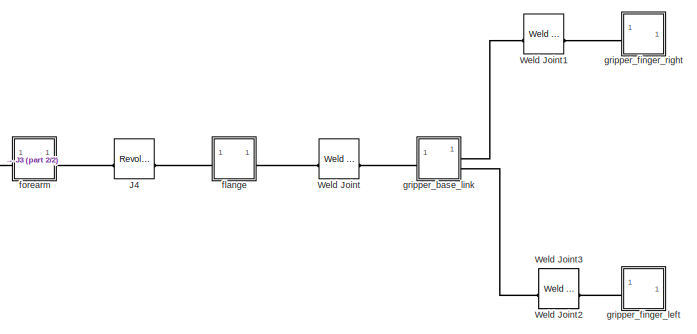
[diagram: root canvas - part 1/2, right side, full height]
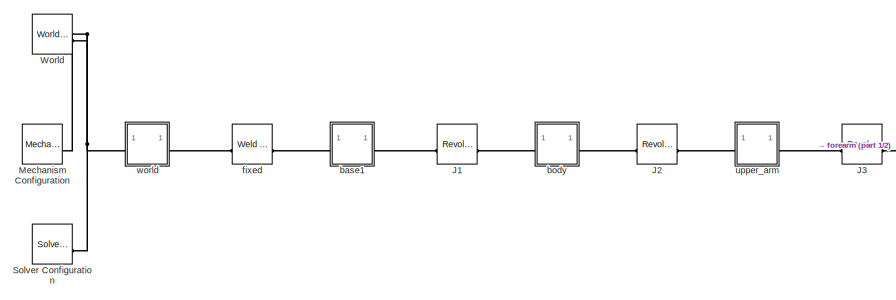
[diagram: root canvas - part 2/2, left side, full height]
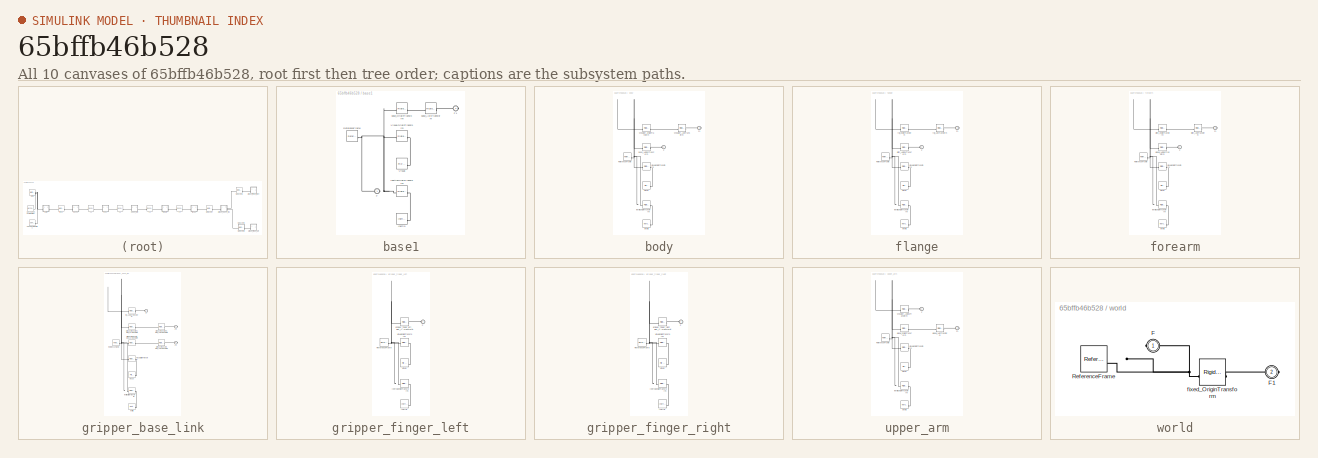
[diagram: thumbnail index - all 10 canvases of the model, root first then tree order]
MODEL slx_65bffb46b528
KIND model
CONFIG AbsTol = auto
CONFIG EnableMultiTasking = off
CONFIG FixedStep = auto
CONFIG MaxStep = auto
CONFIG MinStep = auto
CONFIG RelTol = 1e-3
CONFIG SampleTimeConstraint = Unconstrained
CONFIG SolverName = VariableStepAuto
CONFIG StartTime = 0.0
CONFIG StopTime = 1
BLOCK [Reference] J1  REF=sm_lib/Joints/Revolute Joint
  SourceBlock = sm_lib/Joints/Revolute Joint
  SourceType = Revolute Joint
BLOCK [Reference] J2  REF=sm_lib/Joints/Revolute Joint
  SourceBlock = sm_lib/Joints/Revolute Joint
  SourceType = Revolute Joint
BLOCK [Reference] J3  REF=sm_lib/Joints/Revolute Joint
  SourceBlock = sm_lib/Joints/Revolute Joint
  SourceType = Revolute Joint
BLOCK [Reference] J4  REF=sm_lib/Joints/Revolute Joint
  SourceBlock = sm_lib/Joints/Revolute Joint
  SourceType = Revolute Joint
BLOCK [Reference] Mechanism Configuration  REF=sm_lib/Utilities/Mechanism
Configuration
  SourceBlock = sm_lib/Utilities/Mechanism\nConfiguration
  SourceType = Mechanism\nConfiguration
BLOCK [Reference] Solver Configuration  REF=nesl_utility/Solver
Configuration
  SourceBlock = nesl_utility/Solver\nConfiguration
  SourceType = Solver\nConfiguration
BLOCK [Reference] Weld Joint  REF=sm_lib/Joints/Weld Joint
  SourceBlock = sm_lib/Joints/Weld Joint
  SourceType = Weld Joint
BLOCK [Reference] Weld Joint1  REF=sm_lib/Joints/Weld Joint
  SourceBlock = sm_lib/Joints/Weld Joint
  SourceType = Weld Joint
BLOCK [Reference] Weld Joint2  REF=sm_lib/Joints/Weld Joint
  Commented = on
  SourceBlock = sm_lib/Joints/Weld Joint
  SourceType = Weld Joint
BLOCK [Reference] Weld Joint3  REF=sm_lib/Joints/Weld Joint
  SourceBlock = sm_lib/Joints/Weld Joint
  SourceType = Weld Joint
BLOCK [Reference] World  REF=sm_lib/Frames and
Transforms/World Frame
  SourceBlock = sm_lib/Frames and\nTransforms/World Frame
  SourceType = World Frame
BLOCK [SubSystem] base1
BLOCK [PMIOPort] base1/F
  Side = Left
BLOCK [PMIOPort] base1/F1
  Port = 2
  Side = Right
BLOCK [Reference] base1/Inertia  REF=sm_lib/Body Elements/Inertia
  SourceBlock = sm_lib/Body Elements/Inertia
  SourceType = Inertia
BLOCK [Reference] base1/InertiaOriginTransform  REF=sm_lib/Frames and
Transforms/Rigid
Transform
  SourceBlock = sm_lib/Frames and\nTransforms/Rigid\nTransform
  SourceType = Rigid\nTransform
BLOCK [Reference] base1/ReferenceFrame  REF=sm_lib/Frames and
Transforms/Reference
Frame
  SourceBlock = sm_lib/Frames and\nTransforms/Reference\nFrame
  SourceType = Reference\nFrame
BLOCK [Reference] base1/Visual  REF=sm_lib/Body Elements/File Solid
  SourceBlock = sm_lib/Body Elements/File Solid
  SourceType = File Solid
BLOCK [Reference] base1/VisualOriginTransform  REF=sm_lib/Frames and
Transforms/Rigid
Transform
  SourceBlock = sm_lib/Frames and\nTransforms/Rigid\nTransform
  SourceType = Rigid\nTransform
BLOCK [Reference] base1/base_AxisTransform  REF=sm_lib/Frames and
Transforms/Rigid
Transform
  SourceBlock = sm_lib/Frames and\nTransforms/Rigid\nTransform
  SourceType = Rigid\nTransform
BLOCK [Reference] base1/base_OriginTransform  REF=sm_lib/Frames and
Transforms/Rigid
Transform
  SourceBlock = sm_lib/Frames and\nTransforms/Rigid\nTransform
  SourceType = Rigid\nTransform
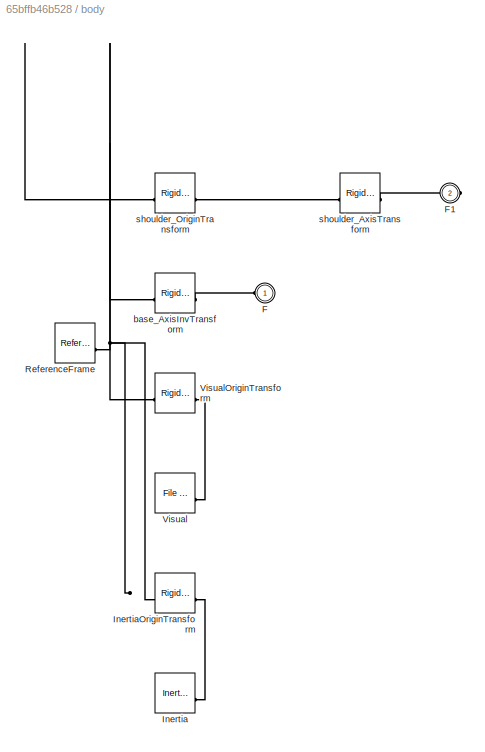
BLOCK [SubSystem] body
BLOCK [PMIOPort] body/F
  Side = Left
BLOCK [PMIOPort] body/F1
  Port = 2
  Side = Right
BLOCK [Reference] body/Inertia  REF=sm_lib/Body Elements/Inertia
  SourceBlock = sm_lib/Body Elements/Inertia
  SourceType = Inertia
BLOCK [Reference] body/InertiaOriginTransform  REF=sm_lib/Frames and
Transforms/Rigid
Transform
  SourceBlock = sm_lib/Frames and\nTransforms/Rigid\nTransform
  SourceType = Rigid\nTransform
BLOCK [Reference] body/ReferenceFrame  REF=sm_lib/Frames and
Transforms/Reference
Frame
  SourceBlock = sm_lib/Frames and\nTransforms/Reference\nFrame
  SourceType = Reference\nFrame
BLOCK [Reference] body/Visual  REF=sm_lib/Body Elements/File Solid
  SourceBlock = sm_lib/Body Elements/File Solid
  SourceType = File Solid
BLOCK [Reference] body/VisualOriginTransform  REF=sm_lib/Frames and
Transforms/Rigid
Transform
  SourceBlock = sm_lib/Frames and\nTransforms/Rigid\nTransform
  SourceType = Rigid\nTransform
BLOCK [Reference] body/base_AxisInvTransform  REF=sm_lib/Frames and
Transforms/Rigid
Transform
  SourceBlock = sm_lib/Frames and\nTransforms/Rigid\nTransform
  SourceType = Rigid\nTransform
BLOCK [Reference] body/shoulder_AxisTransform  REF=sm_lib/Frames and
Transforms/Rigid
Transform
  SourceBlock = sm_lib/Frames and\nTransforms/Rigid\nTransform
  SourceType = Rigid\nTransform
BLOCK [Reference] body/shoulder_OriginTransform  REF=sm_lib/Frames and
Transforms/Rigid
Transform
  SourceBlock = sm_lib/Frames and\nTransforms/Rigid\nTransform
  SourceType = Rigid\nTransform
BLOCK [Reference] fixed  REF=sm_lib/Joints/Weld Joint
  SourceBlock = sm_lib/Joints/Weld Joint
  SourceType = Weld Joint
BLOCK [SubSystem] flange
BLOCK [PMIOPort] flange/F
  Side = Left
BLOCK [PMIOPort] flange/F1
  Port = 2
  Side = Right
BLOCK [Reference] flange/Inertia  REF=sm_lib/Body Elements/Inertia
  SourceBlock = sm_lib/Body Elements/Inertia
  SourceType = Inertia
BLOCK [Reference] flange/InertiaOriginTransform  REF=sm_lib/Frames and
Transforms/Rigid
Transform
  SourceBlock = sm_lib/Frames and\nTransforms/Rigid\nTransform
  SourceType = Rigid\nTransform
BLOCK [Reference] flange/ReferenceFrame  REF=sm_lib/Frames and
Transforms/Reference
Frame
  SourceBlock = sm_lib/Frames and\nTransforms/Reference\nFrame
  SourceType = Reference\nFrame
BLOCK [Reference] flange/Visual  REF=sm_lib/Body Elements/File Solid
  SourceBlock = sm_lib/Body Elements/File Solid
  SourceType = File Solid
BLOCK [Reference] flange/VisualOriginTransform  REF=sm_lib/Frames and
Transforms/Rigid
Transform
  SourceBlock = sm_lib/Frames and\nTransforms/Rigid\nTransform
  SourceType = Rigid\nTransform
BLOCK [Reference] flange/pitch_AxisInvTransform  REF=sm_lib/Frames and
Transforms/Rigid
Transform
  SourceBlock = sm_lib/Frames and\nTransforms/Rigid\nTransform
  SourceType = Rigid\nTransform
BLOCK [Reference] flange/roll_AxisTransform  REF=sm_lib/Frames and
Transforms/Rigid
Transform
  SourceBlock = sm_lib/Frames and\nTransforms/Rigid\nTransform
  SourceType = Rigid\nTransform
BLOCK [Reference] flange/roll_OriginTransform  REF=sm_lib/Frames and
Transforms/Rigid
Transform
  SourceBlock = sm_lib/Frames and\nTransforms/Rigid\nTransform
  SourceType = Rigid\nTransform
BLOCK [SubSystem] forearm
BLOCK [PMIOPort] forearm/F
  Side = Left
BLOCK [PMIOPort] forearm/F1
  Port = 2
  Side = Right
BLOCK [Reference] forearm/Inertia  REF=sm_lib/Body Elements/Inertia
  SourceBlock = sm_lib/Body Elements/Inertia
  SourceType = Inertia
BLOCK [Reference] forearm/InertiaOriginTransform  REF=sm_lib/Frames and
Transforms/Rigid
Transform
  SourceBlock = sm_lib/Frames and\nTransforms/Rigid\nTransform
  SourceType = Rigid\nTransform
BLOCK [Reference] forearm/ReferenceFrame  REF=sm_lib/Frames and
Transforms/Reference
Frame
  SourceBlock = sm_lib/Frames and\nTransforms/Reference\nFrame
  SourceType = Reference\nFrame
BLOCK [Reference] forearm/Visual  REF=sm_lib/Body Elements/File Solid
  SourceBlock = sm_lib/Body Elements/File Solid
  SourceType = File Solid
BLOCK [Reference] forearm/VisualOriginTransform  REF=sm_lib/Frames and
Transforms/Rigid
Transform
  SourceBlock = sm_lib/Frames and\nTransforms/Rigid\nTransform
  SourceType = Rigid\nTransform
BLOCK [Reference] forearm/elbow_AxisInvTransform  REF=sm_lib/Frames and
Transforms/Rigid
Transform
  SourceBlock = sm_lib/Frames and\nTransforms/Rigid\nTransform
  SourceType = Rigid\nTransform
BLOCK [Reference] forearm/pitch_AxisTransform  REF=sm_lib/Frames and
Transforms/Rigid
Transform
  SourceBlock = sm_lib/Frames and\nTransforms/Rigid\nTransform
  SourceType = Rigid\nTransform
BLOCK [Reference] forearm/pitch_OriginTransform  REF=sm_lib/Frames and
Transforms/Rigid
Transform
  SourceBlock = sm_lib/Frames and\nTransforms/Rigid\nTransform
  SourceType = Rigid\nTransform
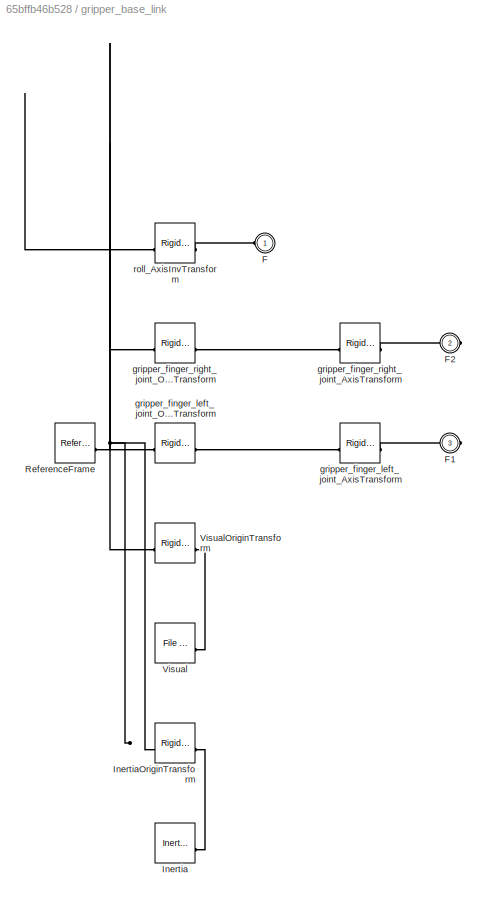
BLOCK [SubSystem] gripper_base_link
BLOCK [PMIOPort] gripper_base_link/F
  Side = Left
BLOCK [PMIOPort] gripper_base_link/F1
  Port = 3
  Side = Right
BLOCK [PMIOPort] gripper_base_link/F2
  Port = 2
  Side = Right
BLOCK [Reference] gripper_base_link/Inertia  REF=sm_lib/Body Elements/Inertia
  SourceBlock = sm_lib/Body Elements/Inertia
  SourceType = Inertia
BLOCK [Reference] gripper_base_link/InertiaOriginTransform  REF=sm_lib/Frames and
Transforms/Rigid
Transform
  SourceBlock = sm_lib/Frames and\nTransforms/Rigid\nTransform
  SourceType = Rigid\nTransform
BLOCK [Reference] gripper_base_link/ReferenceFrame  REF=sm_lib/Frames and
Transforms/Reference
Frame
  SourceBlock = sm_lib/Frames and\nTransforms/Reference\nFrame
  SourceType = Reference\nFrame
BLOCK [Reference] gripper_base_link/Visual  REF=sm_lib/Body Elements/File Solid
  SourceBlock = sm_lib/Body Elements/File Solid
  SourceType = File Solid
BLOCK [Reference] gripper_base_link/VisualOriginTransform  REF=sm_lib/Frames and
Transforms/Rigid
Transform
  SourceBlock = sm_lib/Frames and\nTransforms/Rigid\nTransform
  SourceType = Rigid\nTransform
BLOCK [Reference] gripper_base_link/gripper_finger_left_joint_AxisTransform  REF=sm_lib/Frames and
Transforms/Rigid
Transform
  SourceBlock = sm_lib/Frames and\nTransforms/Rigid\nTransform
  SourceType = Rigid\nTransform
BLOCK [Reference] gripper_base_link/gripper_finger_left_joint_OriginTransform  REF=sm_lib/Frames and
Transforms/Rigid
Transform
  SourceBlock = sm_lib/Frames and\nTransforms/Rigid\nTransform
  SourceType = Rigid\nTransform
BLOCK [Reference] gripper_base_link/gripper_finger_right_joint_AxisTransform  REF=sm_lib/Frames and
Transforms/Rigid
Transform
  SourceBlock = sm_lib/Frames and\nTransforms/Rigid\nTransform
  SourceType = Rigid\nTransform
BLOCK [Reference] gripper_base_link/gripper_finger_right_joint_OriginTransform  REF=sm_lib/Frames and
Transforms/Rigid
Transform
  SourceBlock = sm_lib/Frames and\nTransforms/Rigid\nTransform
  SourceType = Rigid\nTransform
BLOCK [Reference] gripper_base_link/roll_AxisInvTransform  REF=sm_lib/Frames and
Transforms/Rigid
Transform
  SourceBlock = sm_lib/Frames and\nTransforms/Rigid\nTransform
  SourceType = Rigid\nTransform
BLOCK [SubSystem] gripper_finger_left
BLOCK [PMIOPort] gripper_finger_left/F
  Side = Left
BLOCK [Reference] gripper_finger_left/Inertia  REF=sm_lib/Body Elements/Inertia
  SourceBlock = sm_lib/Body Elements/Inertia
  SourceType = Inertia
BLOCK [Reference] gripper_finger_left/InertiaOriginTransform  REF=sm_lib/Frames and
Transforms/Rigid
Transform
  SourceBlock = sm_lib/Frames and\nTransforms/Rigid\nTransform
  SourceType = Rigid\nTransform
BLOCK [Reference] gripper_finger_left/ReferenceFrame  REF=sm_lib/Frames and
Transforms/Reference
Frame
  SourceBlock = sm_lib/Frames and\nTransforms/Reference\nFrame
  SourceType = Reference\nFrame
BLOCK [Reference] gripper_finger_left/Visual  REF=sm_lib/Body Elements/File Solid
  SourceBlock = sm_lib/Body Elements/File Solid
  SourceType = File Solid
BLOCK [Reference] gripper_finger_left/VisualOriginTransform  REF=sm_lib/Frames and
Transforms/Rigid
Transform
  SourceBlock = sm_lib/Frames and\nTransforms/Rigid\nTransform
  SourceType = Rigid\nTransform
BLOCK [Reference] gripper_finger_left/gripper_finger_left_joint_AxisInvTransform  REF=sm_lib/Frames and
Transforms/Rigid
Transform
  SourceBlock = sm_lib/Frames and\nTransforms/Rigid\nTransform
  SourceType = Rigid\nTransform
BLOCK [SubSystem] gripper_finger_right
BLOCK [PMIOPort] gripper_finger_right/F
  Side = Left
BLOCK [Reference] gripper_finger_right/Inertia  REF=sm_lib/Body Elements/Inertia
  SourceBlock = sm_lib/Body Elements/Inertia
  SourceType = Inertia
BLOCK [Reference] gripper_finger_right/InertiaOriginTransform  REF=sm_lib/Frames and
Transforms/Rigid
Transform
  SourceBlock = sm_lib/Frames and\nTransforms/Rigid\nTransform
  SourceType = Rigid\nTransform
BLOCK [Reference] gripper_finger_right/ReferenceFrame  REF=sm_lib/Frames and
Transforms/Reference
Frame
  SourceBlock = sm_lib/Frames and\nTransforms/Reference\nFrame
  SourceType = Reference\nFrame
BLOCK [Reference] gripper_finger_right/Visual  REF=sm_lib/Body Elements/File Solid
  SourceBlock = sm_lib/Body Elements/File Solid
  SourceType = File Solid
BLOCK [Reference] gripper_finger_right/VisualOriginTransform  REF=sm_lib/Frames and
Transforms/Rigid
Transform
  SourceBlock = sm_lib/Frames and\nTransforms/Rigid\nTransform
  SourceType = Rigid\nTransform
BLOCK [Reference] gripper_finger_right/gripper_finger_right_joint_AxisInvTransform  REF=sm_lib/Frames and
Transforms/Rigid
Transform
  SourceBlock = sm_lib/Frames and\nTransforms/Rigid\nTransform
  SourceType = Rigid\nTransform
BLOCK [SubSystem] upper_arm
BLOCK [PMIOPort] upper_arm/F
  Side = Left
BLOCK [PMIOPort] upper_arm/F1
  Port = 2
  Side = Right
BLOCK [Reference] upper_arm/Inertia  REF=sm_lib/Body Elements/Inertia
  SourceBlock = sm_lib/Body Elements/Inertia
  SourceType = Inertia
BLOCK [Reference] upper_arm/InertiaOriginTransform  REF=sm_lib/Frames and
Transforms/Rigid
Transform
  SourceBlock = sm_lib/Frames and\nTransforms/Rigid\nTransform
  SourceType = Rigid\nTransform
BLOCK [Reference] upper_arm/ReferenceFrame  REF=sm_lib/Frames and
Transforms/Reference
Frame
  SourceBlock = sm_lib/Frames and\nTransforms/Reference\nFrame
  SourceType = Reference\nFrame
BLOCK [Reference] upper_arm/Visual  REF=sm_lib/Body Elements/File Solid
  SourceBlock = sm_lib/Body Elements/File Solid
  SourceType = File Solid
BLOCK [Reference] upper_arm/VisualOriginTransform  REF=sm_lib/Frames and
Transforms/Rigid
Transform
  SourceBlock = sm_lib/Frames and\nTransforms/Rigid\nTransform
  SourceType = Rigid\nTransform
BLOCK [Reference] upper_arm/elbow_AxisTransform  REF=sm_lib/Frames and
Transforms/Rigid
Transform
  SourceBlock = sm_lib/Frames and\nTransforms/Rigid\nTransform
  SourceType = Rigid\nTransform
BLOCK [Reference] upper_arm/elbow_OriginTransform  REF=sm_lib/Frames and
Transforms/Rigid
Transform
  SourceBlock = sm_lib/Frames and\nTransforms/Rigid\nTransform
  SourceType = Rigid\nTransform
BLOCK [Reference] upper_arm/shoulder_AxisInvTransform  REF=sm_lib/Frames and
Transforms/Rigid
Transform
  SourceBlock = sm_lib/Frames and\nTransforms/Rigid\nTransform
  SourceType = Rigid\nTransform
BLOCK [SubSystem] world
BLOCK [PMIOPort] world/F
  Side = Left
BLOCK [PMIOPort] world/F1
  Port = 2
  Side = Right
BLOCK [Reference] world/ReferenceFrame  REF=sm_lib/Frames and
Transforms/Reference
Frame
  SourceBlock = sm_lib/Frames and\nTransforms/Reference\nFrame
  SourceType = Reference\nFrame
BLOCK [Reference] world/fixed_OriginTransform  REF=sm_lib/Frames and
Transforms/Rigid
Transform
  SourceBlock = sm_lib/Frames and\nTransforms/Rigid\nTransform
  SourceType = Rigid\nTransform
PLINE J1:LConn1 -- base1:RConn1
PLINE J1:RConn1 -- body:LConn1
PLINE J2:LConn1 -- body:RConn1
PLINE J2:RConn1 -- upper_arm:LConn1
PLINE J3:LConn1 -- upper_arm:RConn1
PLINE J3:RConn1 -- forearm:LConn1
PLINE J4:LConn1 -- forearm:RConn1
PLINE J4:RConn1 -- flange:LConn1
PNET net1: Mechanism Configuration:RConn1 -- Solver Configuration:RConn1 -- World:RConn1 -- world:LConn1
PLINE Weld Joint1:LConn1 -- gripper_base_link:RConn1
PLINE Weld Joint1:RConn1 -- gripper_finger_right:LConn1
PLINE Weld Joint3:LConn1 -- gripper_base_link:RConn2
PLINE Weld Joint3:RConn1 -- gripper_finger_left:LConn1
PLINE Weld Joint:LConn1 -- flange:RConn1
PLINE Weld Joint:RConn1 -- gripper_base_link:LConn1
PLINE base1/F1:RConn1 -- base1/base_AxisTransform:RConn1
PNET net2: base1/F:RConn1 -- base1/InertiaOriginTransform:LConn1 -- base1/ReferenceFrame:RConn1 -- base1/VisualOriginTransform:LConn1 -- base1/base_OriginTransform:LConn1
PLINE base1/Inertia:RConn1 -- base1/InertiaOriginTransform:RConn1
PLINE base1/Visual:RConn1 -- base1/VisualOriginTransform:RConn1
PLINE base1/base_AxisTransform:LConn1 -- base1/base_OriginTransform:RConn1
PLINE base1:LConn1 -- fixed:RConn1
PLINE body/F1:RConn1 -- body/shoulder_AxisTransform:RConn1
PLINE body/F:RConn1 -- body/base_AxisInvTransform:RConn1
PLINE body/Inertia:RConn1 -- body/InertiaOriginTransform:RConn1
PNET net3: body/InertiaOriginTransform:LConn1 -- body/ReferenceFrame:RConn1 -- body/VisualOriginTransform:LConn1 -- body/base_AxisInvTransform:LConn1 -- body/shoulder_OriginTransform:LConn1
PLINE body/Visual:RConn1 -- body/VisualOriginTransform:RConn1
PLINE body/shoulder_AxisTransform:LConn1 -- body/shoulder_OriginTransform:RConn1
PLINE fixed:LConn1 -- world:RConn1
PLINE flange/F1:RConn1 -- flange/roll_AxisTransform:RConn1
PLINE flange/F:RConn1 -- flange/pitch_AxisInvTransform:RConn1
PLINE flange/Inertia:RConn1 -- flange/InertiaOriginTransform:RConn1
PNET net4: flange/InertiaOriginTransform:LConn1 -- flange/ReferenceFrame:RConn1 -- flange/VisualOriginTransform:LConn1 -- flange/pitch_AxisInvTransform:LConn1 -- flange/roll_OriginTransform:LConn1
PLINE flange/Visual:RConn1 -- flange/VisualOriginTransform:RConn1
PLINE flange/roll_AxisTransform:LConn1 -- flange/roll_OriginTransform:RConn1
PLINE forearm/F1:RConn1 -- forearm/pitch_AxisTransform:RConn1
PLINE forearm/F:RConn1 -- forearm/elbow_AxisInvTransform:RConn1
PLINE forearm/Inertia:RConn1 -- forearm/InertiaOriginTransform:RConn1
PNET net5: forearm/InertiaOriginTransform:LConn1 -- forearm/ReferenceFrame:RConn1 -- forearm/VisualOriginTransform:LConn1 -- forearm/elbow_AxisInvTransform:LConn1 -- forearm/pitch_OriginTransform:LConn1
PLINE forearm/Visual:RConn1 -- forearm/VisualOriginTransform:RConn1
PLINE forearm/pitch_AxisTransform:LConn1 -- forearm/pitch_OriginTransform:RConn1
PLINE gripper_base_link/F1:RConn1 -- gripper_base_link/gripper_finger_left_joint_AxisTransform:RConn1
PLINE gripper_base_link/F2:RConn1 -- gripper_base_link/gripper_finger_right_joint_AxisTransform:RConn1
PLINE gripper_base_link/F:RConn1 -- gripper_base_link/roll_AxisInvTransform:RConn1
PLINE gripper_base_link/Inertia:RConn1 -- gripper_base_link/InertiaOriginTransform:RConn1
PNET net6: gripper_base_link/InertiaOriginTransform:LConn1 -- gripper_base_link/ReferenceFrame:RConn1 -- gripper_base_link/VisualOriginTransform:LConn1 -- gripper_base_link/gripper_finger_left_joint_OriginTransform:LConn1 -- gripper_base_link/gripper_finger_right_joint_OriginTransform:LConn1 -- gripper_base_link/roll_AxisInvTransform:LConn1
PLINE gripper_base_link/Visual:RConn1 -- gripper_base_link/VisualOriginTransform:RConn1
PLINE gripper_base_link/gripper_finger_left_joint_AxisTransform:LConn1 -- gripper_base_link/gripper_finger_left_joint_OriginTransform:RConn1
PLINE gripper_base_link/gripper_finger_right_joint_AxisTransform:LConn1 -- gripper_base_link/gripper_finger_right_joint_OriginTransform:RConn1
PLINE gripper_finger_left/F:RConn1 -- gripper_finger_left/gripper_finger_left_joint_AxisInvTransform:RConn1
PLINE gripper_finger_left/Inertia:RConn1 -- gripper_finger_left/InertiaOriginTransform:RConn1
PNET net7: gripper_finger_left/InertiaOriginTransform:LConn1 -- gripper_finger_left/ReferenceFrame:RConn1 -- gripper_finger_left/VisualOriginTransform:LConn1 -- gripper_finger_left/gripper_finger_left_joint_AxisInvTransform:LConn1
PLINE gripper_finger_left/Visual:RConn1 -- gripper_finger_left/VisualOriginTransform:RConn1
PLINE gripper_finger_right/F:RConn1 -- gripper_finger_right/gripper_finger_right_joint_AxisInvTransform:RConn1
PLINE gripper_finger_right/Inertia:RConn1 -- gripper_finger_right/InertiaOriginTransform:RConn1
PNET net8: gripper_finger_right/InertiaOriginTransform:LConn1 -- gripper_finger_right/ReferenceFrame:RConn1 -- gripper_finger_right/VisualOriginTransform:LConn1 -- gripper_finger_right/gripper_finger_right_joint_AxisInvTransform:LConn1
PLINE gripper_finger_right/Visual:RConn1 -- gripper_finger_right/VisualOriginTransform:RConn1
PLINE upper_arm/F1:RConn1 -- upper_arm/elbow_AxisTransform:RConn1
PLINE upper_arm/F:RConn1 -- upper_arm/shoulder_AxisInvTransform:RConn1
PLINE upper_arm/Inertia:RConn1 -- upper_arm/InertiaOriginTransform:RConn1
PNET net9: upper_arm/InertiaOriginTransform:LConn1 -- upper_arm/ReferenceFrame:RConn1 -- upper_arm/VisualOriginTransform:LConn1 -- upper_arm/elbow_OriginTransform:LConn1 -- upper_arm/shoulder_AxisInvTransform:LConn1
PLINE upper_arm/Visual:RConn1 -- upper_arm/VisualOriginTransform:RConn1
PLINE upper_arm/elbow_AxisTransform:LConn1 -- upper_arm/elbow_OriginTransform:RConn1
PLINE world/F1:RConn1 -- world/fixed_OriginTransform:RConn1
PNET net10: world/F:RConn1 -- world/ReferenceFrame:RConn1 -- world/fixed_OriginTransform:LConn1
note: PNET lines group multi-terminal physical nets as a canonical sorted terminal list (undirected conserving connections); 2-terminal nets keep the pairwise PLINE form
